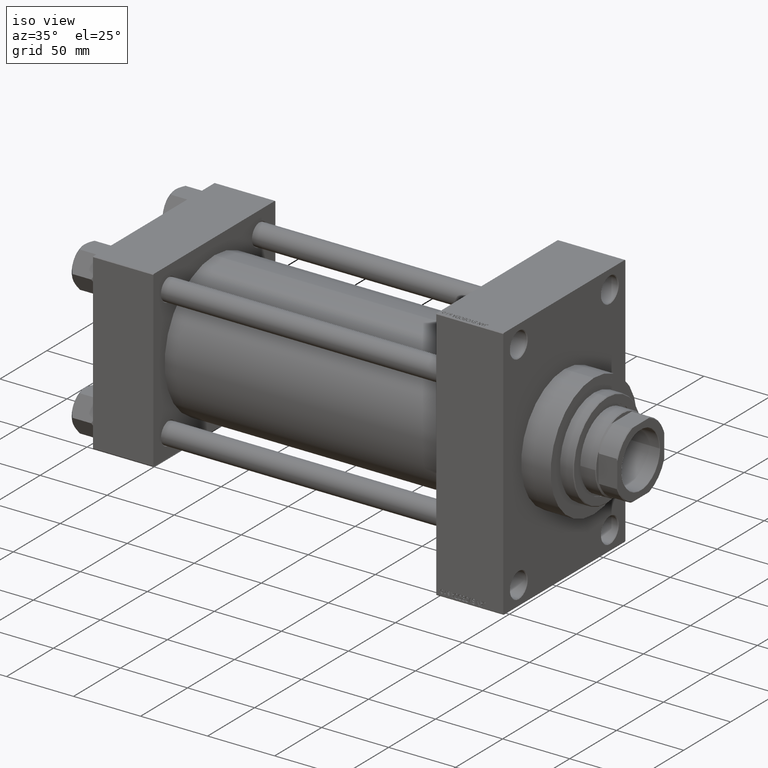
[diagram: clean part render]
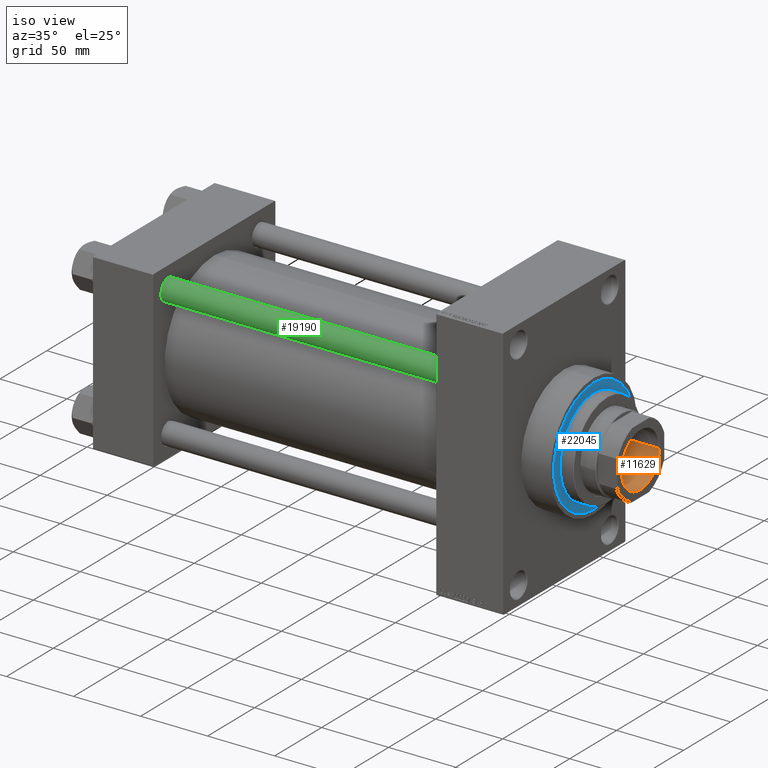
[diagram: same view with three faces highlighted in distinct colors, each labeled with its STEP entity id]
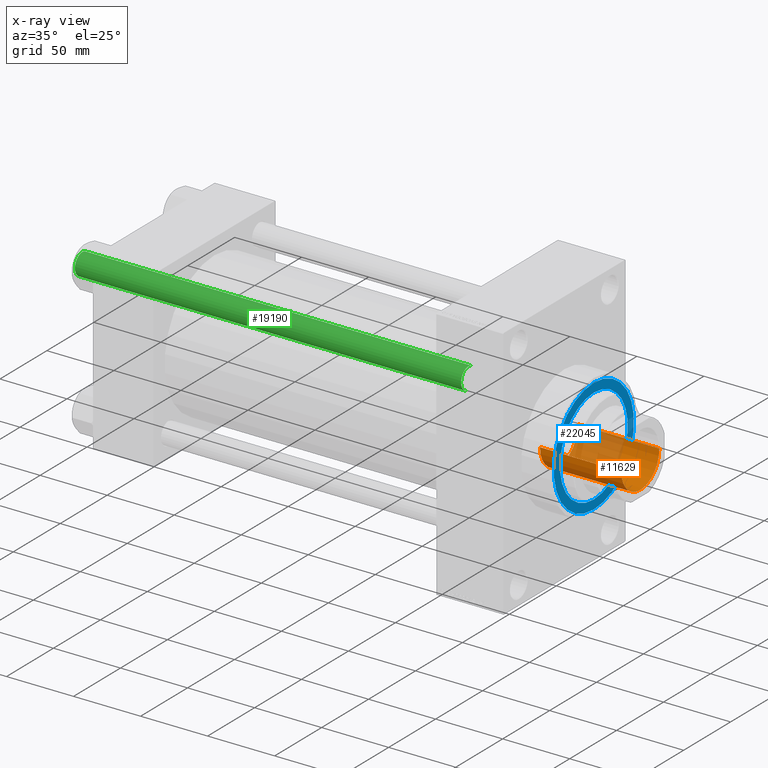
[diagram: x-ray of the same camera — body ghosted, the three highlighted faces saturated]
A machine part, iso view with three faces highlighted in distinct colors.
The next image is the same camera in x-ray (body ghosted, the three faces saturated) — at least one of them is partly hidden behind the body in this view.
Their STEP definitions:

[orange] entity #11629 — the highlighted cylindrical surface (edge-blend (fillet) strip) has radius 20.25 mm, axis along (1, 0, 0).
#204 = DIRECTION ( 'NONE',  ( -0.000000000000000000, -0.000000000000000000, 1.000000000000000000 ) ) ;
#2396 = CARTESIAN_POINT ( 'NONE',  ( 0.000000000000000000, 0.000000000000000000, 318.0000000000000000 ) ) ;
#3131 = DIRECTION ( 'NONE',  ( 1.000000000000000000, 0.000000000000000000, 0.000000000000000000 ) ) ;
#4757 = DIRECTION ( 'NONE',  ( 1.000000000000000000, 0.000000000000000000, 0.000000000000000000 ) ) ;
#7463 = EDGE_LOOP ( 'NONE', ( #37766, #28086, #8910, #13605 ) ) ;
#7891 = LINE ( 'NONE', #23564, #40921 ) ;
#7898 = VERTEX_POINT ( 'NONE', #34300 ) ;
#8910 = ORIENTED_EDGE ( 'NONE', *, *, #27381, .T. ) ;
#10831 = CARTESIAN_POINT ( 'NONE',  ( 20.24999999999999289, 0.000000000000000000, 317.6999999999999886 ) ) ;
#11075 = AXIS2_PLACEMENT_3D ( 'NONE', #2396, #34998, #16413 ) ;
#11629 = ADVANCED_FACE ( 'NONE', ( #27515 ), #35234, .F. ) ;
#13215 = DIRECTION ( 'NONE',  ( -0.000000000000000000, -0.000000000000000000, 1.000000000000000000 ) ) ;
#13605 = ORIENTED_EDGE ( 'NONE', *, *, #20851, .T. ) ;
#13761 = DIRECTION ( 'NONE',  ( 0.000000000000000000, 0.000000000000000000, 1.000000000000000000 ) ) ;
#14586 = VERTEX_POINT ( 'NONE', #29898 ) ;
#14657 = VECTOR ( 'NONE', #13215, 1000.000000000000000 ) ;
#15255 = VERTEX_POINT ( 'NONE', #27067 ) ;
#16413 = DIRECTION ( 'NONE',  ( 1.000000000000000000, 0.000000000000000000, 0.000000000000000000 ) ) ;
#17394 = CARTESIAN_POINT ( 'NONE',  ( 0.000000000000000000, 0.000000000000000000, 317.6999999999999886 ) ) ;
#19041 = AXIS2_PLACEMENT_3D ( 'NONE', #44861, #204, #4757 ) ;
#19963 = EDGE_CURVE ( 'NONE', #7898, #14586, #47587, .T. ) ;
#20851 = EDGE_CURVE ( 'NONE', #30665, #15255, #24487, .T. ) ;
#23564 = CARTESIAN_POINT ( 'NONE',  ( -20.24999999999999289, 2.479909768273389511E-15, 318.0000000000000000 ) ) ;
#24337 = LINE ( 'NONE', #35428, #14657 ) ;
#24487 = CIRCLE ( 'NONE', #41440, 20.24999999999999289 ) ;
#26935 = DIRECTION ( 'NONE',  ( -0.000000000000000000, -0.000000000000000000, 1.000000000000000000 ) ) ;
#27067 = CARTESIAN_POINT ( 'NONE',  ( -20.24999999999999289, 2.479909768273389511E-15, 317.6999999999999886 ) ) ;
#27381 = EDGE_CURVE ( 'NONE', #7898, #30665, #24337, .T. ) ;
#27515 = FACE_OUTER_BOUND ( 'NONE', #7463, .T. ) ;
#28086 = ORIENTED_EDGE ( 'NONE', *, *, #19963, .F. ) ;
#29898 = CARTESIAN_POINT ( 'NONE',  ( -20.24999999999998934, 2.479909768273389117E-15, 257.0000000000000000 ) ) ;
#30665 = VERTEX_POINT ( 'NONE', #10831 ) ;
#33315 = EDGE_CURVE ( 'NONE', #14586, #15255, #7891, .T. ) ;
#34300 = CARTESIAN_POINT ( 'NONE',  ( 20.24999999999998934, 0.000000000000000000, 257.0000000000000000 ) ) ;
#34998 = DIRECTION ( 'NONE',  ( -0.000000000000000000, -0.000000000000000000, 1.000000000000000000 ) ) ;
#35234 = CYLINDRICAL_SURFACE ( 'NONE', #11075, 20.24999999999999289 ) ;
#35428 = CARTESIAN_POINT ( 'NONE',  ( 20.24999999999999289, 0.000000000000000000, 318.0000000000000000 ) ) ;
#37766 = ORIENTED_EDGE ( 'NONE', *, *, #33315, .F. ) ;
#40921 = VECTOR ( 'NONE', #26935, 1000.000000000000000 ) ;
#41440 = AXIS2_PLACEMENT_3D ( 'NONE', #17394, #13761, #3131 ) ;
#44861 = CARTESIAN_POINT ( 'NONE',  ( 0.000000000000000000, 0.000000000000000000, 257.0000000000000000 ) ) ;
#47587 = CIRCLE ( 'NONE', #19041, 20.24999999999998934 ) ;

[blue] entity #22045 — the highlighted planar face has unit normal (1, -0, -0).
#1656 = CARTESIAN_POINT ( 'NONE',  ( 0.000000000000000000, 0.000000000000000000, 43.25999999999999801 ) ) ;
#1750 = DIRECTION ( 'NONE',  ( 1.000000000000000000, 0.000000000000000000, 0.000000000000000000 ) ) ;
#1865 = VERTEX_POINT ( 'NONE', #35121 ) ;
#1984 = DIRECTION ( 'NONE',  ( 0.000000000000000000, 0.000000000000000000, 1.000000000000000000 ) ) ;
#2621 = EDGE_LOOP ( 'NONE', ( #17686, #13982 ) ) ;
#3333 = VERTEX_POINT ( 'NONE', #19816 ) ;
#3796 = CARTESIAN_POINT ( 'NONE',  ( 0.000000000000000000, 0.000000000000000000, 43.25999999999999801 ) ) ;
#5425 = AXIS2_PLACEMENT_3D ( 'NONE', #24977, #16746, #31479 ) ;
#7197 = FACE_BOUND ( 'NONE', #2621, .T. ) ;
#9608 = VERTEX_POINT ( 'NONE', #21514 ) ;
#9801 = ORIENTED_EDGE ( 'NONE', *, *, #29078, .T. ) ;
#13982 = ORIENTED_EDGE ( 'NONE', *, *, #45526, .F. ) ;
#14857 = EDGE_LOOP ( 'NONE', ( #32981, #9801 ) ) ;
#14925 = DIRECTION ( 'NONE',  ( 1.000000000000000000, 0.000000000000000000, 0.000000000000000000 ) ) ;
#16746 = DIRECTION ( 'NONE',  ( 0.000000000000000000, 0.000000000000000000, 1.000000000000000000 ) ) ;
#16856 = AXIS2_PLACEMENT_3D ( 'NONE', #1656, #39087, #16869 ) ;
#16869 = DIRECTION ( 'NONE',  ( 1.000000000000000000, 0.000000000000000000, 0.000000000000000000 ) ) ;
#17686 = ORIENTED_EDGE ( 'NONE', *, *, #43168, .F. ) ;
#18533 = DIRECTION ( 'NONE',  ( 0.000000000000000000, 0.000000000000000000, 1.000000000000000000 ) ) ;
#19816 = CARTESIAN_POINT ( 'NONE',  ( -36.00000000000000000, 0.000000000000000000, 43.25999999999999801 ) ) ;
#20857 = CIRCLE ( 'NONE', #5425, 42.75000000000000000 ) ;
#21444 = FACE_OUTER_BOUND ( 'NONE', #14857, .T. ) ;
#21514 = CARTESIAN_POINT ( 'NONE',  ( 42.75000000000000000, 5.235365066354935472E-15, 43.25999999999999801 ) ) ;
#22045 = ADVANCED_FACE ( 'NONE', ( #7197, #21444 ), #25310, .T. ) ;
#24151 = EDGE_CURVE ( 'NONE', #41195, #9608, #24593, .T. ) ;
#24593 = CIRCLE ( 'NONE', #16856, 42.75000000000000000 ) ;
#24977 = CARTESIAN_POINT ( 'NONE',  ( 0.000000000000000000, 0.000000000000000000, 43.25999999999999801 ) ) ;
#25310 = PLANE ( 'NONE',  #33752 ) ;
#29078 = EDGE_CURVE ( 'NONE', #9608, #41195, #20857, .T. ) ;
#29427 = AXIS2_PLACEMENT_3D ( 'NONE', #3796, #18533, #14925 ) ;
#30106 = AXIS2_PLACEMENT_3D ( 'NONE', #34138, #1984, #1750 ) ;
#31479 = DIRECTION ( 'NONE',  ( 1.000000000000000000, 0.000000000000000000, 0.000000000000000000 ) ) ;
#32981 = ORIENTED_EDGE ( 'NONE', *, *, #24151, .T. ) ;
#33752 = AXIS2_PLACEMENT_3D ( 'NONE', #47744, #40038, #44128 ) ;
#34138 = CARTESIAN_POINT ( 'NONE',  ( 0.000000000000000000, 0.000000000000000000, 43.25999999999999801 ) ) ;
#35121 = CARTESIAN_POINT ( 'NONE',  ( 36.00000000000000000, 4.408728476930470856E-15, 43.25999999999999801 ) ) ;
#38568 = CIRCLE ( 'NONE', #30106, 36.00000000000000000 ) ;
#39087 = DIRECTION ( 'NONE',  ( 0.000000000000000000, 0.000000000000000000, 1.000000000000000000 ) ) ;
#40038 = DIRECTION ( 'NONE',  ( 0.000000000000000000, 0.000000000000000000, 1.000000000000000000 ) ) ;
#41195 = VERTEX_POINT ( 'NONE', #46555 ) ;
#43168 = EDGE_CURVE ( 'NONE', #3333, #1865, #38568, .T. ) ;
#44128 = DIRECTION ( 'NONE',  ( 1.000000000000000000, 0.000000000000000000, -0.000000000000000000 ) ) ;
#45526 = EDGE_CURVE ( 'NONE', #1865, #3333, #47136, .T. ) ;
#46555 = CARTESIAN_POINT ( 'NONE',  ( -42.75000000000000000, 0.000000000000000000, 43.25999999999999801 ) ) ;
#47136 = CIRCLE ( 'NONE', #29427, 36.00000000000000000 ) ;
#47744 = CARTESIAN_POINT ( 'NONE',  ( 0.000000000000000000, 0.000000000000000000, 43.25999999999999801 ) ) ;

[green] entity #19190 — the highlighted cylindrical surface (edge-blend (fillet) strip) has radius 8 mm, axis along (1, 0, 0).
#195 = CARTESIAN_POINT ( 'NONE',  ( 0.000000000000000000, 0.000000000000000000, 289.0000000000000000 ) ) ;
#2545 = LINE ( 'NONE', #13407, #38334 ) ;
#2624 = CARTESIAN_POINT ( 'NONE',  ( 8.000000000000000000, 9.797174393178825657E-16, 289.0000000000000000 ) ) ;
#3095 = LINE ( 'NONE', #2624, #11274 ) ;
#3577 = DIRECTION ( 'NONE',  ( -0.000000000000000000, -0.000000000000000000, -1.000000000000000000 ) ) ;
#5520 = CARTESIAN_POINT ( 'NONE',  ( 8.000000000000000000, 9.797174393178825657E-16, 288.5000000000000000 ) ) ;
#6235 = DIRECTION ( 'NONE',  ( -0.000000000000000000, -0.000000000000000000, -1.000000000000000000 ) ) ;
#6906 = EDGE_LOOP ( 'NONE', ( #23889, #9727, #39681, #39014 ) ) ;
#9727 = ORIENTED_EDGE ( 'NONE', *, *, #19129, .T. ) ;
#11274 = VECTOR ( 'NONE', #6235, 1000.000000000000000 ) ;
#11427 = VERTEX_POINT ( 'NONE', #26578 ) ;
#13375 = CARTESIAN_POINT ( 'NONE',  ( -8.000000000000000000, 0.000000000000000000, 288.5000000000000000 ) ) ;
#13407 = CARTESIAN_POINT ( 'NONE',  ( -8.000000000000000000, 0.000000000000000000, 289.0000000000000000 ) ) ;
#14516 = DIRECTION ( 'NONE',  ( 0.000000000000000000, 0.000000000000000000, -1.000000000000000000 ) ) ;
#14570 = DIRECTION ( 'NONE',  ( -0.000000000000000000, -0.000000000000000000, 1.000000000000000000 ) ) ;
#16681 = AXIS2_PLACEMENT_3D ( 'NONE', #195, #3577, #37137 ) ;
#18147 = DIRECTION ( 'NONE',  ( 1.000000000000000000, 0.000000000000000000, 0.000000000000000000 ) ) ;
#19129 = EDGE_CURVE ( 'NONE', #29545, #11427, #3095, .T. ) ;
#19190 = ADVANCED_FACE ( 'NONE', ( #24602 ), #28466, .T. ) ;
#19736 = VERTEX_POINT ( 'NONE', #13375 ) ;
#19812 = EDGE_CURVE ( 'NONE', #11427, #31162, #28320, .T. ) ;
#21075 = EDGE_CURVE ( 'NONE', #19736, #31162, #2545, .T. ) ;
#22304 = CARTESIAN_POINT ( 'NONE',  ( -8.000000000000000000, 0.000000000000000000, 0.5000000000000004441 ) ) ;
#23889 = ORIENTED_EDGE ( 'NONE', *, *, #29322, .T. ) ;
#24602 = FACE_OUTER_BOUND ( 'NONE', #6906, .T. ) ;
#24766 = CIRCLE ( 'NONE', #35539, 8.000000000000000000 ) ;
#25388 = CARTESIAN_POINT ( 'NONE',  ( 0.000000000000000000, 0.000000000000000000, 288.5000000000000000 ) ) ;
#25699 = CARTESIAN_POINT ( 'NONE',  ( 0.000000000000000000, 0.000000000000000000, 0.5000000000000004441 ) ) ;
#26578 = CARTESIAN_POINT ( 'NONE',  ( 8.000000000000000000, 9.797174393178825657E-16, 0.5000000000000004441 ) ) ;
#28320 = CIRCLE ( 'NONE', #36794, 8.000000000000000000 ) ;
#28466 = CYLINDRICAL_SURFACE ( 'NONE', #16681, 8.000000000000000000 ) ;
#29322 = EDGE_CURVE ( 'NONE', #19736, #29545, #24766, .T. ) ;
#29545 = VERTEX_POINT ( 'NONE', #5520 ) ;
#31162 = VERTEX_POINT ( 'NONE', #22304 ) ;
#35539 = AXIS2_PLACEMENT_3D ( 'NONE', #25388, #14516, #18147 ) ;
#36794 = AXIS2_PLACEMENT_3D ( 'NONE', #25699, #14570, #44491 ) ;
#37137 = DIRECTION ( 'NONE',  ( -1.000000000000000000, 0.000000000000000000, 0.000000000000000000 ) ) ;
#38334 = VECTOR ( 'NONE', #46493, 1000.000000000000000 ) ;
#39014 = ORIENTED_EDGE ( 'NONE', *, *, #21075, .F. ) ;
#39681 = ORIENTED_EDGE ( 'NONE', *, *, #19812, .T. ) ;
#44491 = DIRECTION ( 'NONE',  ( 1.000000000000000000, 0.000000000000000000, 0.000000000000000000 ) ) ;
#46493 = DIRECTION ( 'NONE',  ( -0.000000000000000000, -0.000000000000000000, -1.000000000000000000 ) ) ;